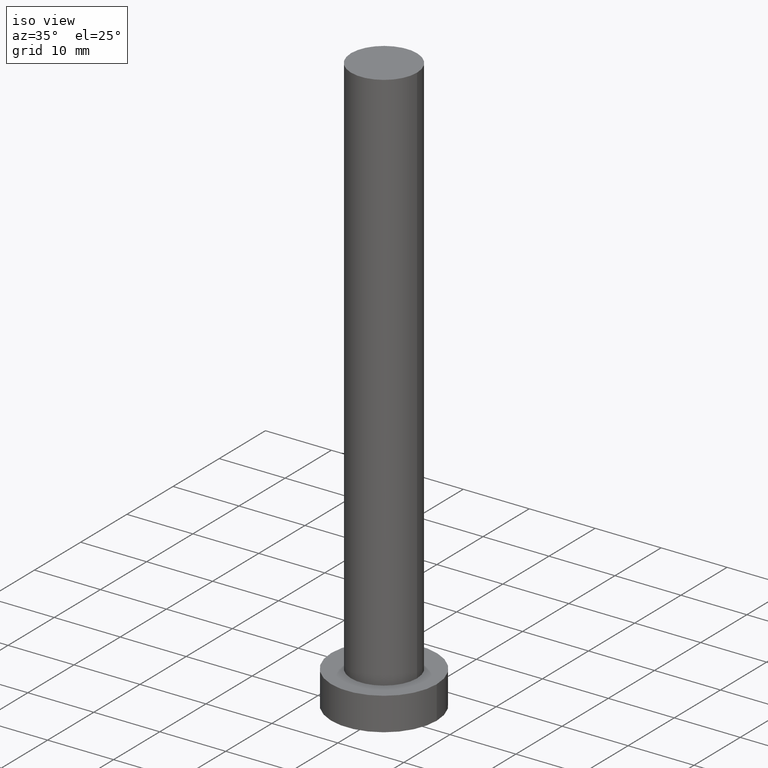
[diagram: clean part render]
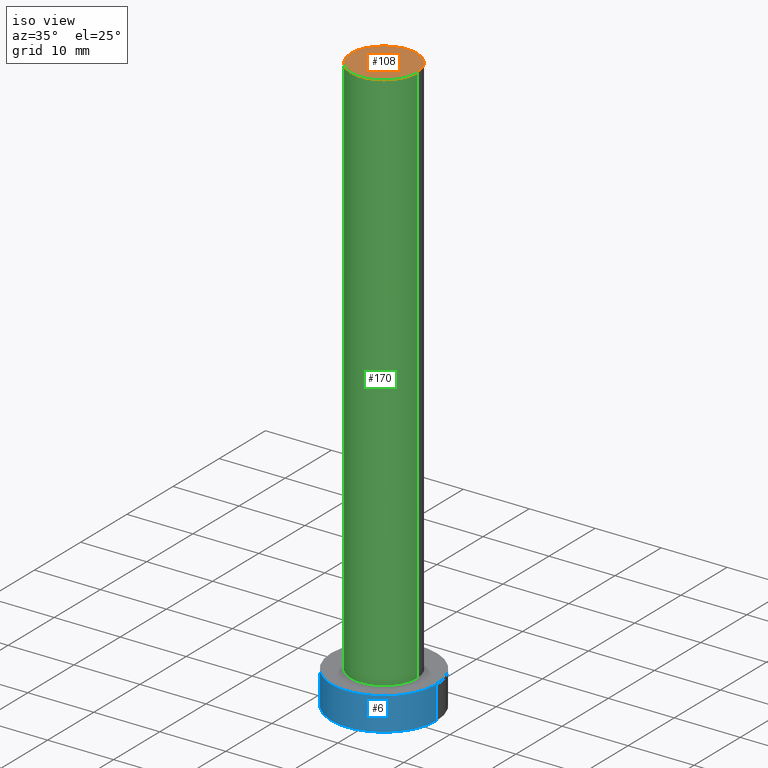
[diagram: same view with three faces highlighted in distinct colors, each labeled with its STEP entity id]
A machine part, iso view with three faces highlighted in distinct colors.
Their STEP definitions:

[orange] entity #108 — the highlighted planar face has unit normal (0, 0, 1).
#1 = CARTESIAN_POINT ( 'NONE',  ( 5.000000000000000888, 6.123233995736767268E-16, 88.00000000000001421 ) ) ;
#26 = DIRECTION ( 'NONE',  ( 1.000000000000000000, 0.000000000000000000, -0.000000000000000000 ) ) ;
#31 = EDGE_CURVE ( 'NONE', #119, #205, #132, .T. ) ;
#40 = ORIENTED_EDGE ( 'NONE', *, *, #31, .T. ) ;
#58 = AXIS2_PLACEMENT_3D ( 'NONE', #103, #226, #221 ) ;
#68 = DIRECTION ( 'NONE',  ( 0.000000000000000000, 0.000000000000000000, 1.000000000000000000 ) ) ;
#90 = EDGE_CURVE ( 'NONE', #205, #119, #168, .T. ) ;
#101 = FACE_OUTER_BOUND ( 'NONE', #133, .T. ) ;
#103 = CARTESIAN_POINT ( 'NONE',  ( 0.000000000000000000, 0.000000000000000000, 88.00000000000001421 ) ) ;
#108 = ADVANCED_FACE ( 'NONE', ( #101 ), #142, .T. ) ;
#119 = VERTEX_POINT ( 'NONE', #1 ) ;
#123 = CARTESIAN_POINT ( 'NONE',  ( 0.000000000000000000, 0.000000000000000000, 88.00000000000001421 ) ) ;
#125 = DIRECTION ( 'NONE',  ( 0.000000000000000000, 0.000000000000000000, 1.000000000000000000 ) ) ;
#132 = CIRCLE ( 'NONE', #214, 5.000000000000000888 ) ;
#133 = EDGE_LOOP ( 'NONE', ( #161, #40 ) ) ;
#137 = CARTESIAN_POINT ( 'NONE',  ( 0.000000000000000000, 0.000000000000000000, 88.00000000000001421 ) ) ;
#142 = PLANE ( 'NONE',  #167 ) ;
#161 = ORIENTED_EDGE ( 'NONE', *, *, #90, .T. ) ;
#167 = AXIS2_PLACEMENT_3D ( 'NONE', #123, #68, #26 ) ;
#168 = CIRCLE ( 'NONE', #58, 5.000000000000000888 ) ;
#205 = VERTEX_POINT ( 'NONE', #254 ) ;
#214 = AXIS2_PLACEMENT_3D ( 'NONE', #137, #125, #223 ) ;
#221 = DIRECTION ( 'NONE',  ( 1.000000000000000000, 0.000000000000000000, 0.000000000000000000 ) ) ;
#223 = DIRECTION ( 'NONE',  ( 1.000000000000000000, 0.000000000000000000, 0.000000000000000000 ) ) ;
#226 = DIRECTION ( 'NONE',  ( 0.000000000000000000, 0.000000000000000000, 1.000000000000000000 ) ) ;
#254 = CARTESIAN_POINT ( 'NONE',  ( -5.000000000000000888, 0.000000000000000000, 88.00000000000001421 ) ) ;

[blue] entity #6 — the highlighted cylindrical surface (partial cylindrical patch) has radius 8 mm, axis along (-0, -0, -1).
#6 = ADVANCED_FACE ( 'NONE', ( #42 ), #15, .T. ) ;
#13 = AXIS2_PLACEMENT_3D ( 'NONE', #28, #238, #243 ) ;
#15 = CYLINDRICAL_SURFACE ( 'NONE', #100, 8.000000000000000000 ) ;
#16 = DIRECTION ( 'NONE',  ( -1.000000000000000000, 0.000000000000000000, 0.000000000000000000 ) ) ;
#20 = ORIENTED_EDGE ( 'NONE', *, *, #201, .T. ) ;
#28 = CARTESIAN_POINT ( 'NONE',  ( 0.000000000000000000, 0.000000000000000000, 5.000000000000000000 ) ) ;
#42 = FACE_OUTER_BOUND ( 'NONE', #218, .T. ) ;
#43 = VERTEX_POINT ( 'NONE', #86 ) ;
#50 = CARTESIAN_POINT ( 'NONE',  ( -8.000000000000000000, 0.000000000000000000, 5.000000000000000000 ) ) ;
#62 = ORIENTED_EDGE ( 'NONE', *, *, #136, .T. ) ;
#70 = EDGE_CURVE ( 'NONE', #184, #159, #166, .T. ) ;
#73 = CIRCLE ( 'NONE', #13, 8.000000000000000000 ) ;
#84 = DIRECTION ( 'NONE',  ( 0.000000000000000000, 0.000000000000000000, 1.000000000000000000 ) ) ;
#86 = CARTESIAN_POINT ( 'NONE',  ( -8.000000000000000000, 0.000000000000000000, 5.000000000000000000 ) ) ;
#87 = CARTESIAN_POINT ( 'NONE',  ( 8.000000000000000000, 9.797174393178825657E-16, 0.000000000000000000 ) ) ;
#94 = CARTESIAN_POINT ( 'NONE',  ( 0.000000000000000000, 0.000000000000000000, 5.000000000000000000 ) ) ;
#98 = ORIENTED_EDGE ( 'NONE', *, *, #239, .F. ) ;
#100 = AXIS2_PLACEMENT_3D ( 'NONE', #94, #118, #16 ) ;
#114 = VERTEX_POINT ( 'NONE', #189 ) ;
#116 = CIRCLE ( 'NONE', #151, 8.000000000000000000 ) ;
#118 = DIRECTION ( 'NONE',  ( -0.000000000000000000, -0.000000000000000000, -1.000000000000000000 ) ) ;
#122 = CARTESIAN_POINT ( 'NONE',  ( 8.000000000000000000, 9.797174393178825657E-16, 5.000000000000000000 ) ) ;
#128 = VECTOR ( 'NONE', #207, 1000.000000000000000 ) ;
#136 = EDGE_CURVE ( 'NONE', #114, #159, #116, .T. ) ;
#143 = CARTESIAN_POINT ( 'NONE',  ( 8.000000000000000000, 9.797174393178825657E-16, 5.000000000000000000 ) ) ;
#146 = VECTOR ( 'NONE', #187, 1000.000000000000000 ) ;
#151 = AXIS2_PLACEMENT_3D ( 'NONE', #206, #84, #165 ) ;
#159 = VERTEX_POINT ( 'NONE', #87 ) ;
#165 = DIRECTION ( 'NONE',  ( 1.000000000000000000, 0.000000000000000000, 0.000000000000000000 ) ) ;
#166 = LINE ( 'NONE', #122, #128 ) ;
#184 = VERTEX_POINT ( 'NONE', #143 ) ;
#187 = DIRECTION ( 'NONE',  ( -0.000000000000000000, -0.000000000000000000, -1.000000000000000000 ) ) ;
#189 = CARTESIAN_POINT ( 'NONE',  ( -8.000000000000000000, 0.000000000000000000, 0.000000000000000000 ) ) ;
#201 = EDGE_CURVE ( 'NONE', #43, #114, #240, .T. ) ;
#206 = CARTESIAN_POINT ( 'NONE',  ( 0.000000000000000000, 0.000000000000000000, 0.000000000000000000 ) ) ;
#207 = DIRECTION ( 'NONE',  ( -0.000000000000000000, -0.000000000000000000, -1.000000000000000000 ) ) ;
#218 = EDGE_LOOP ( 'NONE', ( #220, #98, #20, #62 ) ) ;
#220 = ORIENTED_EDGE ( 'NONE', *, *, #70, .F. ) ;
#238 = DIRECTION ( 'NONE',  ( 0.000000000000000000, 0.000000000000000000, 1.000000000000000000 ) ) ;
#239 = EDGE_CURVE ( 'NONE', #43, #184, #73, .T. ) ;
#240 = LINE ( 'NONE', #50, #146 ) ;
#243 = DIRECTION ( 'NONE',  ( 1.000000000000000000, 0.000000000000000000, 0.000000000000000000 ) ) ;

[green] entity #170 — the highlighted cylindrical surface (partial cylindrical patch) has radius 5 mm, axis along (-0, -0, -1).
#1 = CARTESIAN_POINT ( 'NONE',  ( 5.000000000000000888, 6.123233995736767268E-16, 88.00000000000001421 ) ) ;
#2 = AXIS2_PLACEMENT_3D ( 'NONE', #106, #29, #48 ) ;
#5 = CARTESIAN_POINT ( 'NONE',  ( -5.000000000000000888, 0.000000000000000000, 5.000000000000000000 ) ) ;
#14 = EDGE_CURVE ( 'NONE', #219, #202, #179, .T. ) ;
#23 = DIRECTION ( 'NONE',  ( -0.000000000000000000, -0.000000000000000000, -1.000000000000000000 ) ) ;
#29 = DIRECTION ( 'NONE',  ( -0.000000000000000000, -0.000000000000000000, -1.000000000000000000 ) ) ;
#48 = DIRECTION ( 'NONE',  ( -1.000000000000000000, 0.000000000000000000, 0.000000000000000000 ) ) ;
#58 = AXIS2_PLACEMENT_3D ( 'NONE', #103, #226, #221 ) ;
#60 = VECTOR ( 'NONE', #23, 1000.000000000000000 ) ;
#65 = EDGE_LOOP ( 'NONE', ( #96, #203, #138, #200 ) ) ;
#67 = CARTESIAN_POINT ( 'NONE',  ( 5.000000000000000888, 6.123233995736767268E-16, 5.000000000000000000 ) ) ;
#72 = CYLINDRICAL_SURFACE ( 'NONE', #2, 5.000000000000000888 ) ;
#81 = DIRECTION ( 'NONE',  ( 0.000000000000000000, 0.000000000000000000, 1.000000000000000000 ) ) ;
#83 = LINE ( 'NONE', #120, #60 ) ;
#85 = FACE_OUTER_BOUND ( 'NONE', #65, .T. ) ;
#90 = EDGE_CURVE ( 'NONE', #205, #119, #168, .T. ) ;
#96 = ORIENTED_EDGE ( 'NONE', *, *, #212, .F. ) ;
#103 = CARTESIAN_POINT ( 'NONE',  ( 0.000000000000000000, 0.000000000000000000, 88.00000000000001421 ) ) ;
#106 = CARTESIAN_POINT ( 'NONE',  ( 0.000000000000000000, 0.000000000000000000, 88.00000000000001421 ) ) ;
#119 = VERTEX_POINT ( 'NONE', #1 ) ;
#120 = CARTESIAN_POINT ( 'NONE',  ( -5.000000000000000888, 0.000000000000000000, 88.00000000000001421 ) ) ;
#124 = CARTESIAN_POINT ( 'NONE',  ( 5.000000000000000888, 6.123233995736767268E-16, 88.00000000000001421 ) ) ;
#138 = ORIENTED_EDGE ( 'NONE', *, *, #251, .T. ) ;
#168 = CIRCLE ( 'NONE', #58, 5.000000000000000888 ) ;
#170 = ADVANCED_FACE ( 'NONE', ( #85 ), #72, .T. ) ;
#173 = VECTOR ( 'NONE', #209, 1000.000000000000000 ) ;
#179 = CIRCLE ( 'NONE', #244, 5.000000000000000888 ) ;
#183 = CARTESIAN_POINT ( 'NONE',  ( 0.000000000000000000, 0.000000000000000000, 5.000000000000000000 ) ) ;
#190 = LINE ( 'NONE', #124, #173 ) ;
#200 = ORIENTED_EDGE ( 'NONE', *, *, #14, .T. ) ;
#202 = VERTEX_POINT ( 'NONE', #67 ) ;
#203 = ORIENTED_EDGE ( 'NONE', *, *, #90, .F. ) ;
#204 = DIRECTION ( 'NONE',  ( 1.000000000000000000, 0.000000000000000000, 0.000000000000000000 ) ) ;
#205 = VERTEX_POINT ( 'NONE', #254 ) ;
#209 = DIRECTION ( 'NONE',  ( -0.000000000000000000, -0.000000000000000000, -1.000000000000000000 ) ) ;
#212 = EDGE_CURVE ( 'NONE', #119, #202, #190, .T. ) ;
#219 = VERTEX_POINT ( 'NONE', #5 ) ;
#221 = DIRECTION ( 'NONE',  ( 1.000000000000000000, 0.000000000000000000, 0.000000000000000000 ) ) ;
#226 = DIRECTION ( 'NONE',  ( 0.000000000000000000, 0.000000000000000000, 1.000000000000000000 ) ) ;
#244 = AXIS2_PLACEMENT_3D ( 'NONE', #183, #81, #204 ) ;
#251 = EDGE_CURVE ( 'NONE', #205, #219, #83, .T. ) ;
#254 = CARTESIAN_POINT ( 'NONE',  ( -5.000000000000000888, 0.000000000000000000, 88.00000000000001421 ) ) ;